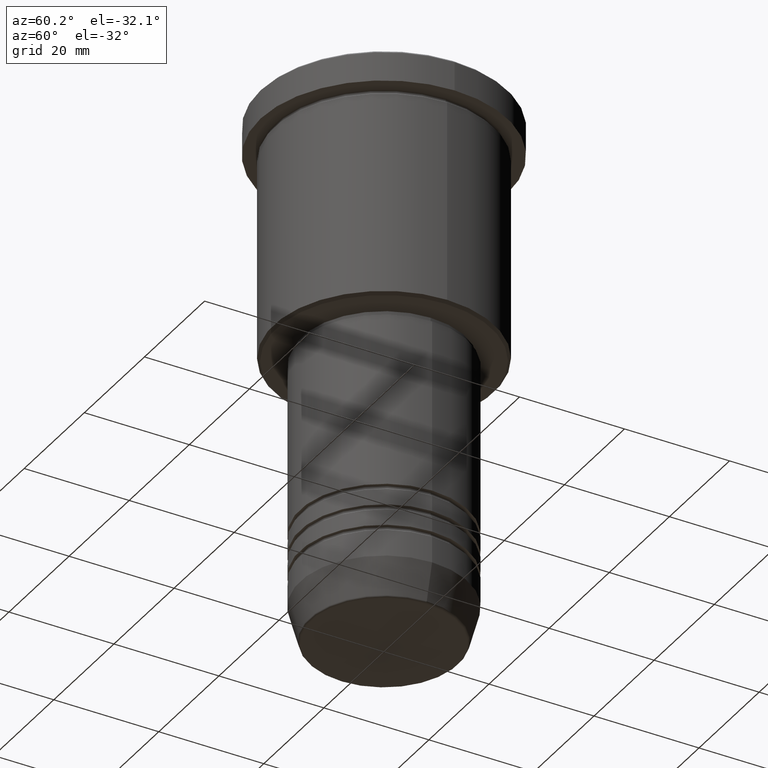
[diagram: clean part render]
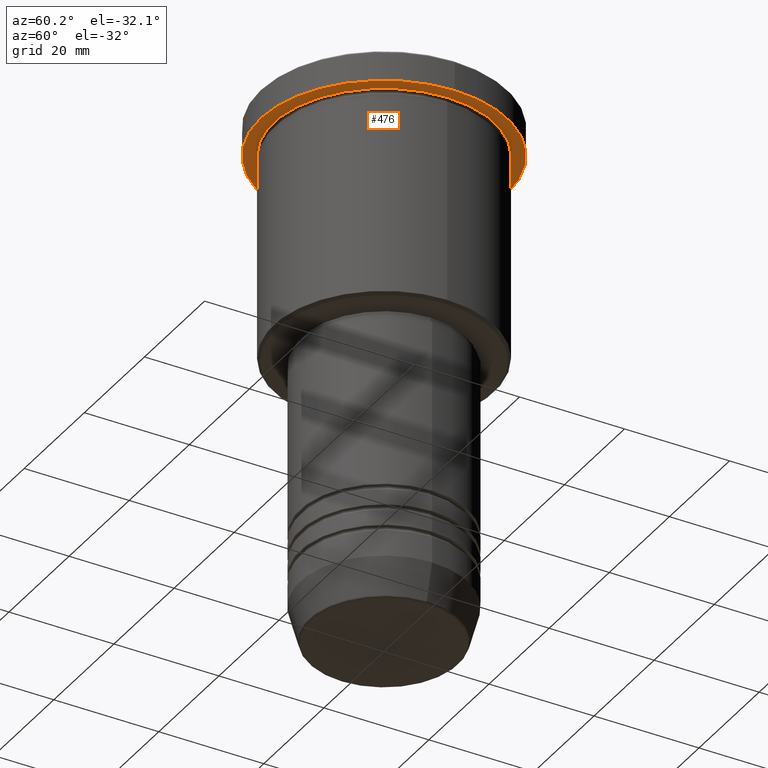
[diagram: same view with one face highlighted and labeled with its STEP entity id]
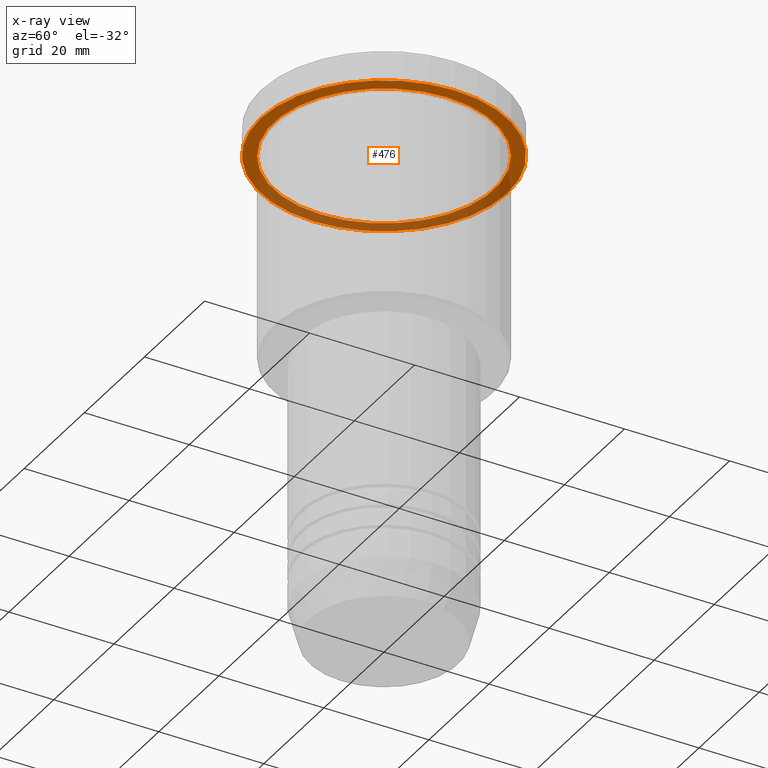
[diagram: x-ray of the same camera — body ghosted, the highlighted face saturated]
A machine part, auxiliary view. The second image highlights one B-rep face of the part: STEP entity #476.
The next image is the same camera in x-ray: the body ghosted, the highlighted face saturated — about 39% of this face is hidden behind the body in this view.
In plain terms, the highlighted planar face has unit normal (0, 0, -1).
Its self-contained STEP definition (entity closure, byte-faithful):
#1 = CARTESIAN_POINT ( 'NONE',  ( 0.000000000000000000, 0.000000000000000000, -5.999999999999993783 ) ) ;
#50 = CARTESIAN_POINT ( 'NONE',  ( 0.000000000000000000, 23.50000000000000000, -5.999999999999993783 ) ) ;
#73 = DIRECTION ( 'NONE',  ( -1.000000000000000000, 0.000000000000000000, 0.000000000000000000 ) ) ;
#80 = VERTEX_POINT ( 'NONE', #929 ) ;
#103 = CIRCLE ( 'NONE', #522, 21.00000000000000000 ) ;
#149 = DIRECTION ( 'NONE',  ( -0.000000000000000000, -0.000000000000000000, 1.000000000000000000 ) ) ;
#178 = CARTESIAN_POINT ( 'NONE',  ( -21.00000000000000000, 0.000000000000000000, -5.999999999999992895 ) ) ;
#187 = AXIS2_PLACEMENT_3D ( 'NONE', #1, #347, #731 ) ;
#189 = CARTESIAN_POINT ( 'NONE',  ( 0.000000000000000000, 0.000000000000000000, -5.999999999999993783 ) ) ;
#197 = AXIS2_PLACEMENT_3D ( 'NONE', #338, #149, #1152 ) ;
#209 = EDGE_CURVE ( 'NONE', #481, #80, #994, .T. ) ;
#243 = ORIENTED_EDGE ( 'NONE', *, *, #612, .F. ) ;
#338 = CARTESIAN_POINT ( 'NONE',  ( 0.000000000000000000, 0.000000000000000000, -5.999999999999993783 ) ) ;
#347 = DIRECTION ( 'NONE',  ( -0.000000000000000000, -0.000000000000000000, 1.000000000000000000 ) ) ;
#416 = DIRECTION ( 'NONE',  ( -1.000000000000000000, 0.000000000000000000, -0.000000000000000000 ) ) ;
#462 = ORIENTED_EDGE ( 'NONE', *, *, #209, .F. ) ;
#476 = ADVANCED_FACE ( 'NONE', ( #691, #1050 ), #1042, .T. ) ;
#481 = VERTEX_POINT ( 'NONE', #1134 ) ;
#504 = AXIS2_PLACEMENT_3D ( 'NONE', #189, #711, #1164 ) ;
#522 = AXIS2_PLACEMENT_3D ( 'NONE', #794, #785, #73 ) ;
#528 = ORIENTED_EDGE ( 'NONE', *, *, #633, .T. ) ;
#553 = EDGE_LOOP ( 'NONE', ( #462, #243 ) ) ;
#612 = EDGE_CURVE ( 'NONE', #80, #481, #1002, .T. ) ;
#633 = EDGE_CURVE ( 'NONE', #694, #793, #103, .T. ) ;
#691 = FACE_BOUND ( 'NONE', #747, .T. ) ;
#694 = VERTEX_POINT ( 'NONE', #923 ) ;
#711 = DIRECTION ( 'NONE',  ( -0.000000000000000000, -0.000000000000000000, 1.000000000000000000 ) ) ;
#731 = DIRECTION ( 'NONE',  ( 1.000000000000000000, 0.000000000000000000, 0.000000000000000000 ) ) ;
#740 = AXIS2_PLACEMENT_3D ( 'NONE', #50, #958, #416 ) ;
#747 = EDGE_LOOP ( 'NONE', ( #1145, #528 ) ) ;
#785 = DIRECTION ( 'NONE',  ( -0.000000000000000000, -0.000000000000000000, 1.000000000000000000 ) ) ;
#791 = CIRCLE ( 'NONE', #504, 21.00000000000000000 ) ;
#793 = VERTEX_POINT ( 'NONE', #178 ) ;
#794 = CARTESIAN_POINT ( 'NONE',  ( 0.000000000000000000, 0.000000000000000000, -5.999999999999993783 ) ) ;
#796 = EDGE_CURVE ( 'NONE', #793, #694, #791, .T. ) ;
#923 = CARTESIAN_POINT ( 'NONE',  ( 21.00000000000000000, 2.571758278209441661E-15, -5.999999999999992895 ) ) ;
#929 = CARTESIAN_POINT ( 'NONE',  ( -23.50000000000000000, 2.877919977996280320E-15, -5.999999999999993783 ) ) ;
#958 = DIRECTION ( 'NONE',  ( 0.000000000000000000, 0.000000000000000000, -1.000000000000000000 ) ) ;
#994 = CIRCLE ( 'NONE', #187, 23.50000000000000000 ) ;
#1002 = CIRCLE ( 'NONE', #197, 23.50000000000000000 ) ;
#1042 = PLANE ( 'NONE',  #740 ) ;
#1050 = FACE_OUTER_BOUND ( 'NONE', #553, .T. ) ;
#1134 = CARTESIAN_POINT ( 'NONE',  ( 23.50000000000000000, 0.000000000000000000, -5.999999999999993783 ) ) ;
#1145 = ORIENTED_EDGE ( 'NONE', *, *, #796, .T. ) ;
#1152 = DIRECTION ( 'NONE',  ( 1.000000000000000000, 0.000000000000000000, 0.000000000000000000 ) ) ;
#1164 = DIRECTION ( 'NONE',  ( -1.000000000000000000, 0.000000000000000000, 0.000000000000000000 ) ) ;